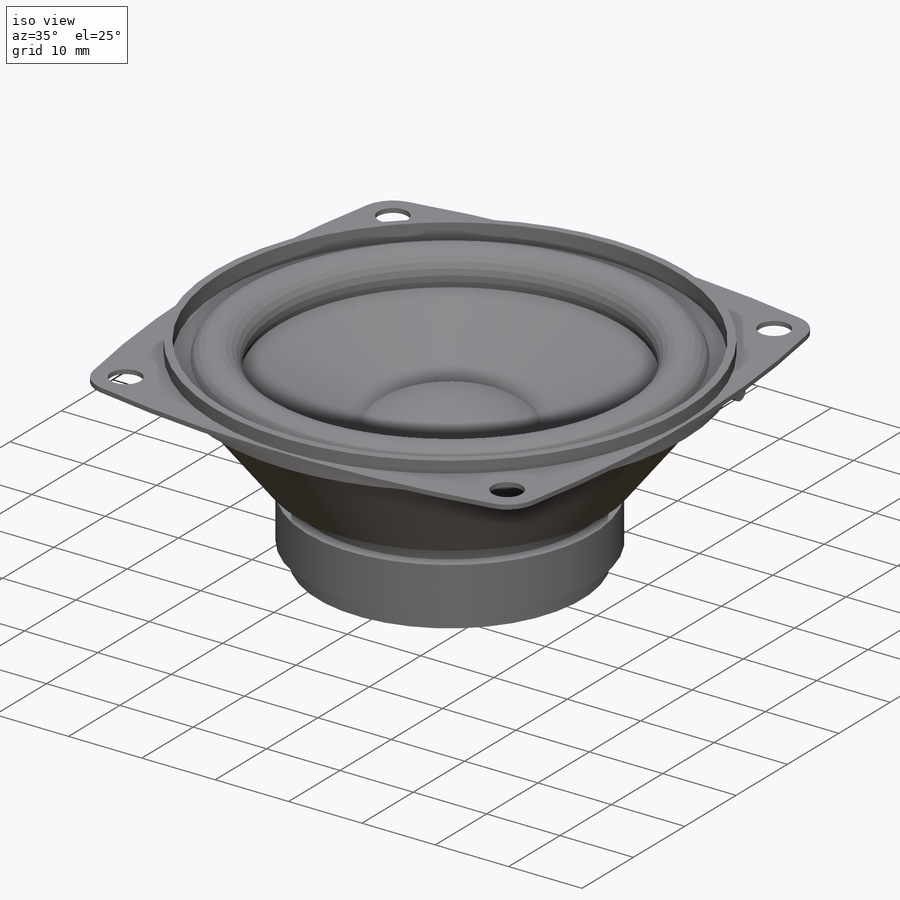
[diagram: iso view]
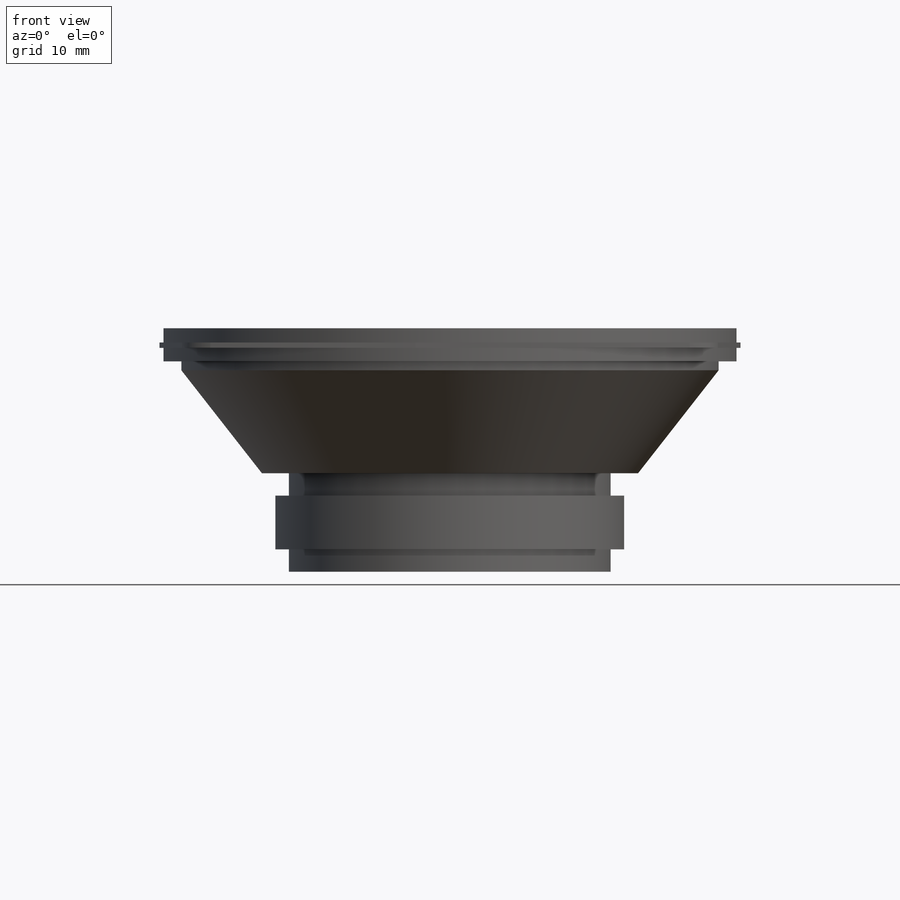
[diagram: front view]
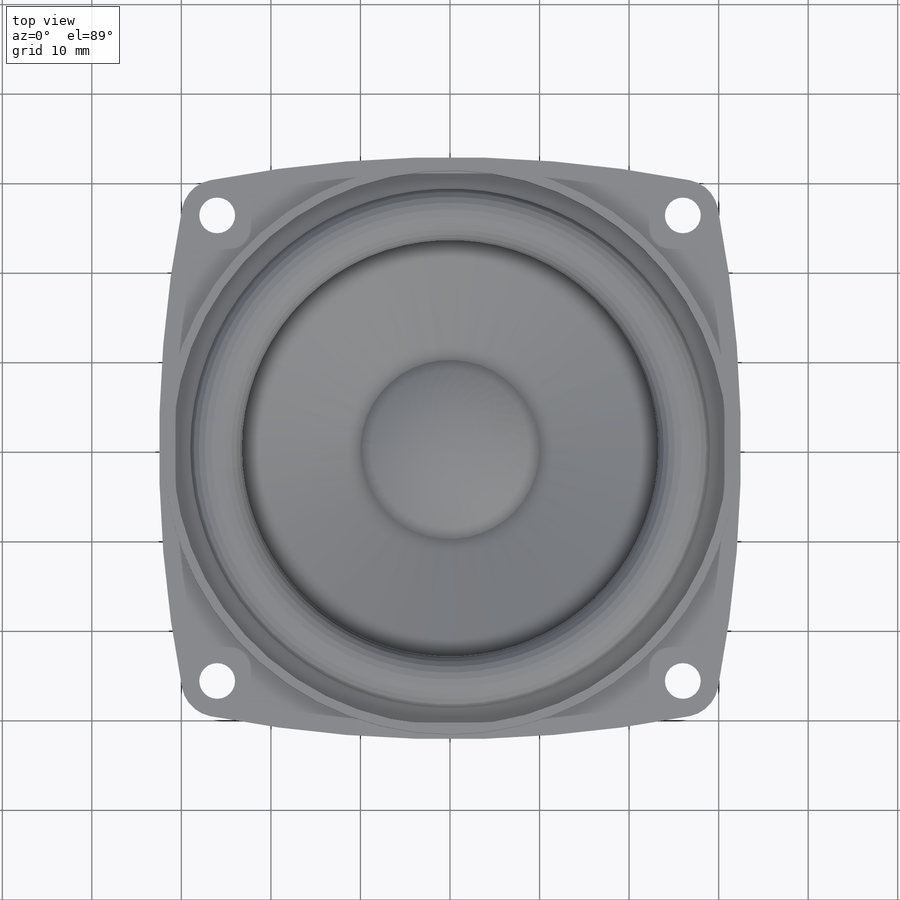
[diagram: top view]
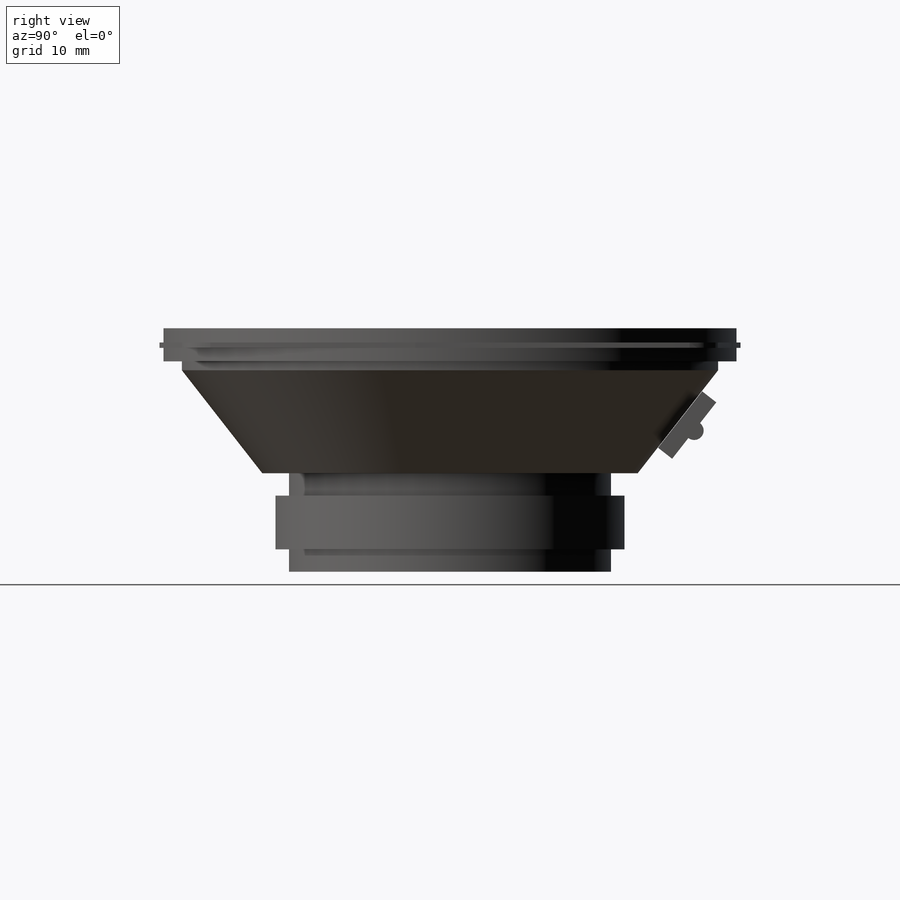
[diagram: right view]
SOLIDWORKS PART (.sldprt)
format: sldprt  version: not decoded by parser v0  size: 321,024 bytes
history: native  units: mm
features: sketch x4, extrude x3, material x1, revolve x1, mirror x1 (+12 scaffold rows collapsed)
feature tree (22):
  scaffold x12  (default folders/planes/origin — collapsed)
  material  "Material <not specified>"
  sketch  "Sketch1"  dims[c1.D1=64.0mm c1.D2=65.0mm c1.D3=4.0mm c1.D5=4.0mm c1.D4=52.0mm c2.D5=2.0mm]
  extrude  "Boss-Extrude1"  Depth=0.6mm
  sketch  "Sketch2"  dims[D1=1.6mm D2=1.0mm D3=2.0mm D4=6.0mm D5=10.0mm D6=3.0mm D7=10.0mm D8=1.5mm D9=36.0mm D10=39.0mm D11=2.5mm D12=25.0mm D13=6.0mm D14=42.0mm D15=2.0mm D16=1.0mm]
  revolve  "Revolve1"  Angle=360deg
  sketch  "Sketch3"  dims[D1=8.0mm D2=2.0mm D3=5.0mm]
  extrude  "Boss-Extrude2"  Depth=25mm
  sketch  "Sketch4"
  extrude  "Boss-Extrude3"  Depth=8mm
  mirror  "Mirror1"
decode coverage: 7 of 9 modeling features carry decoded parameters
note: suppression state not decoded; provenance and decode notes live in map.json
